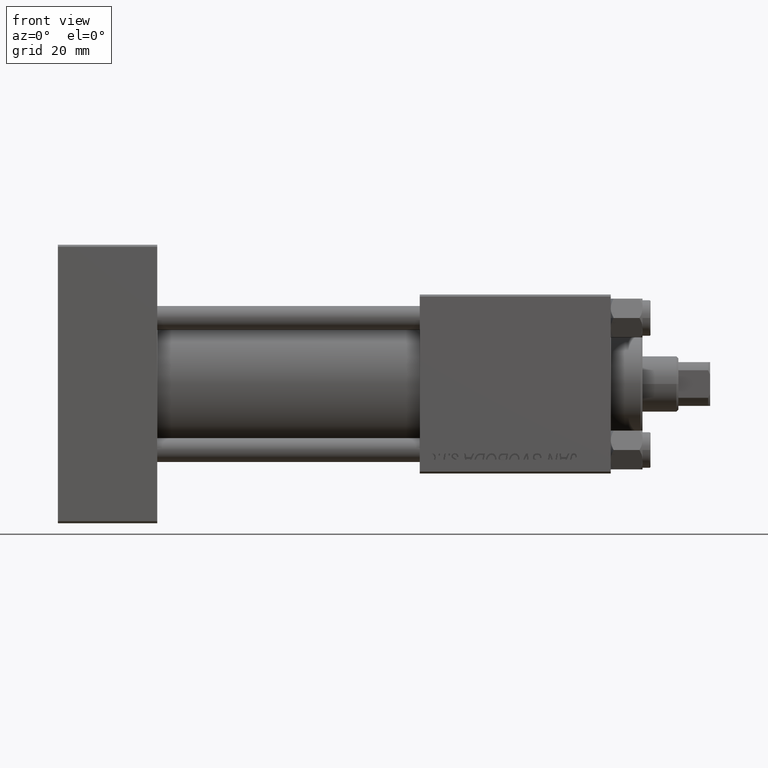
[diagram: clean part render]
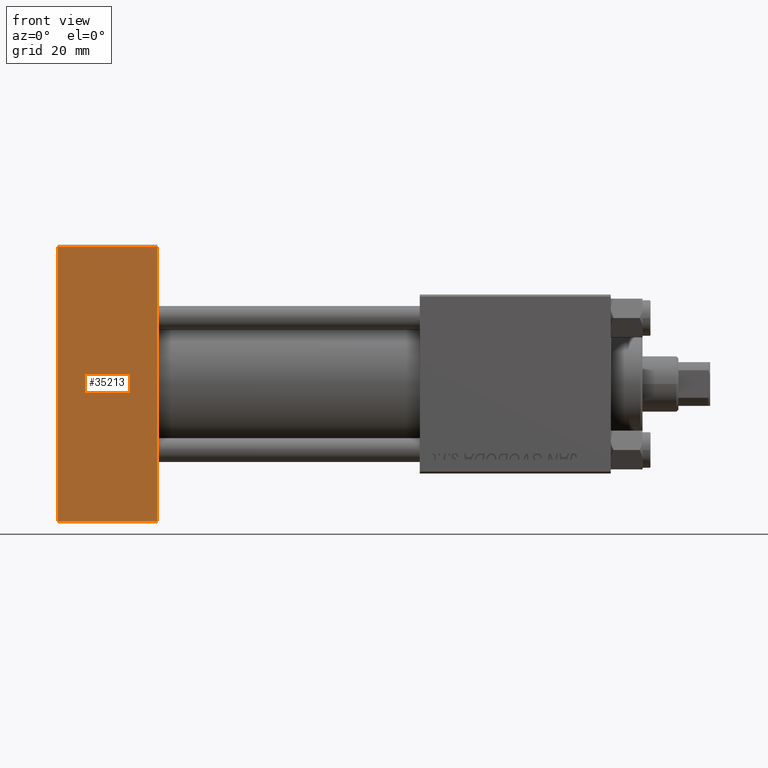
[diagram: same view with one face highlighted and labeled with its STEP entity id]
A machine part, front view. The second image highlights one B-rep face of the part: STEP entity #35213.
In plain terms, the highlighted planar face has unit normal (0, 1, 0).
Its self-contained STEP definition (entity closure, byte-faithful):
#139 = VERTEX_POINT ( 'NONE', #9988 ) ;
#504 = EDGE_LOOP ( 'NONE', ( #12091, #47004, #29461, #2744 ) ) ;
#2183 = EDGE_CURVE ( 'NONE', #139, #49557, #33005, .T. ) ;
#2609 = VERTEX_POINT ( 'NONE', #22819 ) ;
#2744 = ORIENTED_EDGE ( 'NONE', *, *, #31327, .T. ) ;
#4036 = VECTOR ( 'NONE', #19840, 1000.000000000000000 ) ;
#9988 = CARTESIAN_POINT ( 'NONE',  ( 25.00000000000000000, -22.49999999999999645, 34.50000000000000000 ) ) ;
#12091 = ORIENTED_EDGE ( 'NONE', *, *, #18609, .T. ) ;
#13564 = DIRECTION ( 'NONE',  ( 0.000000000000000000, -0.000000000000000000, 1.000000000000000000 ) ) ;
#14870 = CARTESIAN_POINT ( 'NONE',  ( 0.000000000000000000, -22.49999999999999645, -34.50000000000000000 ) ) ;
#15665 = VECTOR ( 'NONE', #23995, 1000.000000000000000 ) ;
#16614 = CARTESIAN_POINT ( 'NONE',  ( 25.00000000000000000, -22.49999999999999645, 35.00000000000000000 ) ) ;
#17679 = VECTOR ( 'NONE', #41443, 1000.000000000000000 ) ;
#18609 = EDGE_CURVE ( 'NONE', #2609, #45481, #39916, .T. ) ;
#19840 = DIRECTION ( 'NONE',  ( 1.000000000000000000, 0.000000000000000000, 0.000000000000000000 ) ) ;
#20404 = DIRECTION ( 'NONE',  ( -0.000000000000000000, 1.000000000000000000, 0.000000000000000000 ) ) ;
#20983 = CARTESIAN_POINT ( 'NONE',  ( 25.00000000000000000, -22.49999999999999645, -34.50000000000000000 ) ) ;
#21739 = LINE ( 'NONE', #37146, #17679 ) ;
#22819 = CARTESIAN_POINT ( 'NONE',  ( 0.000000000000000000, -22.49999999999999645, 34.50000000000000000 ) ) ;
#23995 = DIRECTION ( 'NONE',  ( 0.000000000000000000, 0.000000000000000000, -1.000000000000000000 ) ) ;
#24672 = CARTESIAN_POINT ( 'NONE',  ( 25.00000000000000000, -22.49999999999999645, 35.00000000000000000 ) ) ;
#25411 = DIRECTION ( 'NONE',  ( 0.000000000000000000, 0.000000000000000000, -1.000000000000000000 ) ) ;
#26658 = LINE ( 'NONE', #35260, #4036 ) ;
#29461 = ORIENTED_EDGE ( 'NONE', *, *, #2183, .F. ) ;
#31327 = EDGE_CURVE ( 'NONE', #139, #2609, #21739, .T. ) ;
#33005 = LINE ( 'NONE', #24672, #46039 ) ;
#35213 = ADVANCED_FACE ( 'NONE', ( #36561 ), #40099, .F. ) ;
#35260 = CARTESIAN_POINT ( 'NONE',  ( 25.00000000000000000, -22.49999999999999645, -34.50000000000000000 ) ) ;
#36378 = CARTESIAN_POINT ( 'NONE',  ( 0.000000000000000000, -22.49999999999999645, 35.00000000000000000 ) ) ;
#36561 = FACE_OUTER_BOUND ( 'NONE', #504, .T. ) ;
#37146 = CARTESIAN_POINT ( 'NONE',  ( 25.00000000000000000, -22.49999999999999645, 34.50000000000000000 ) ) ;
#38655 = AXIS2_PLACEMENT_3D ( 'NONE', #16614, #20404, #13564 ) ;
#39916 = LINE ( 'NONE', #36378, #15665 ) ;
#40099 = PLANE ( 'NONE',  #38655 ) ;
#41443 = DIRECTION ( 'NONE',  ( -1.000000000000000000, 0.000000000000000000, 0.000000000000000000 ) ) ;
#45481 = VERTEX_POINT ( 'NONE', #14870 ) ;
#46039 = VECTOR ( 'NONE', #25411, 1000.000000000000000 ) ;
#47004 = ORIENTED_EDGE ( 'NONE', *, *, #47743, .T. ) ;
#47743 = EDGE_CURVE ( 'NONE', #45481, #49557, #26658, .T. ) ;
#49557 = VERTEX_POINT ( 'NONE', #20983 ) ;